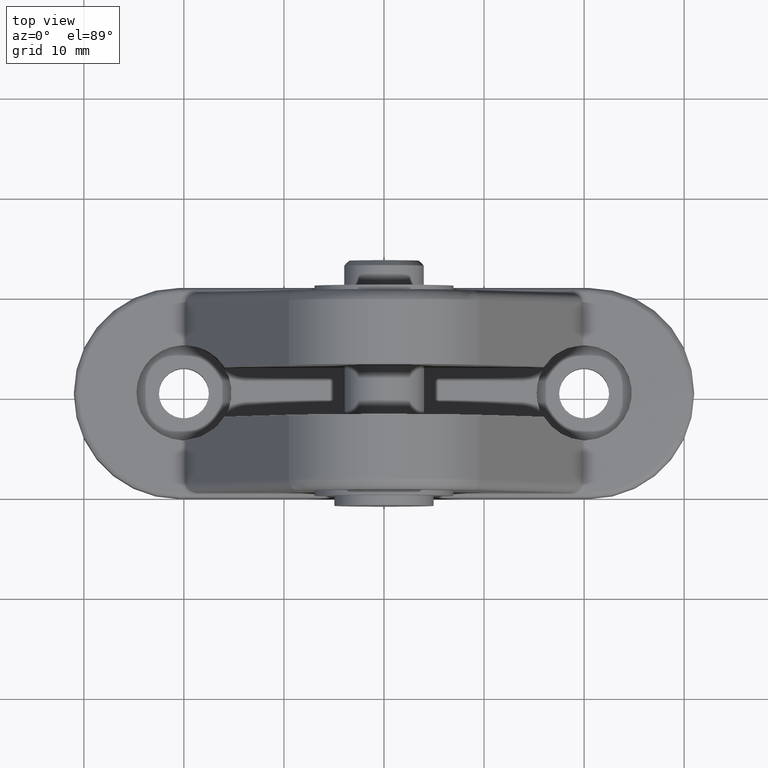
[diagram: clean part render]
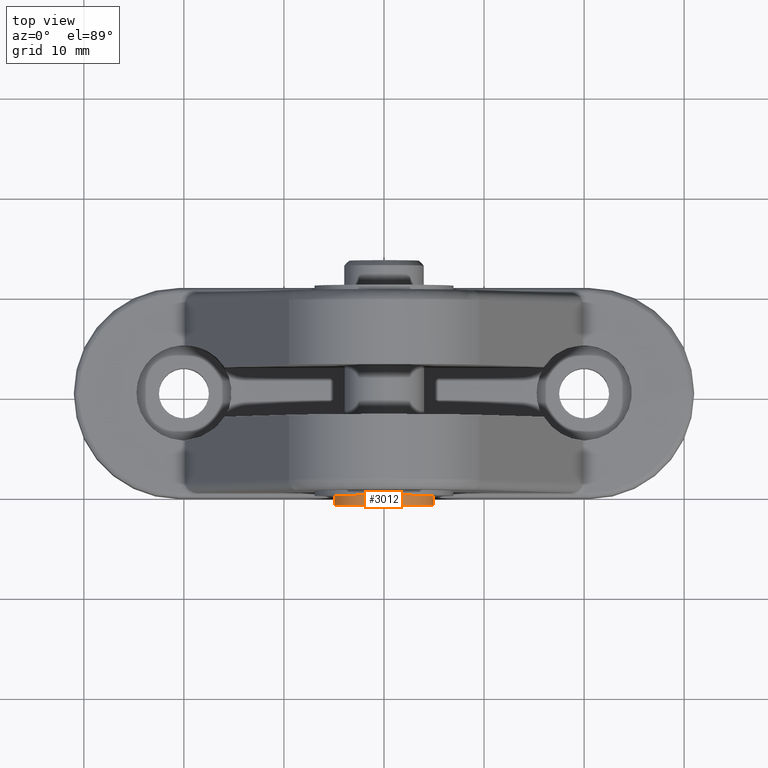
[diagram: same view with one face highlighted and labeled with its STEP entity id]
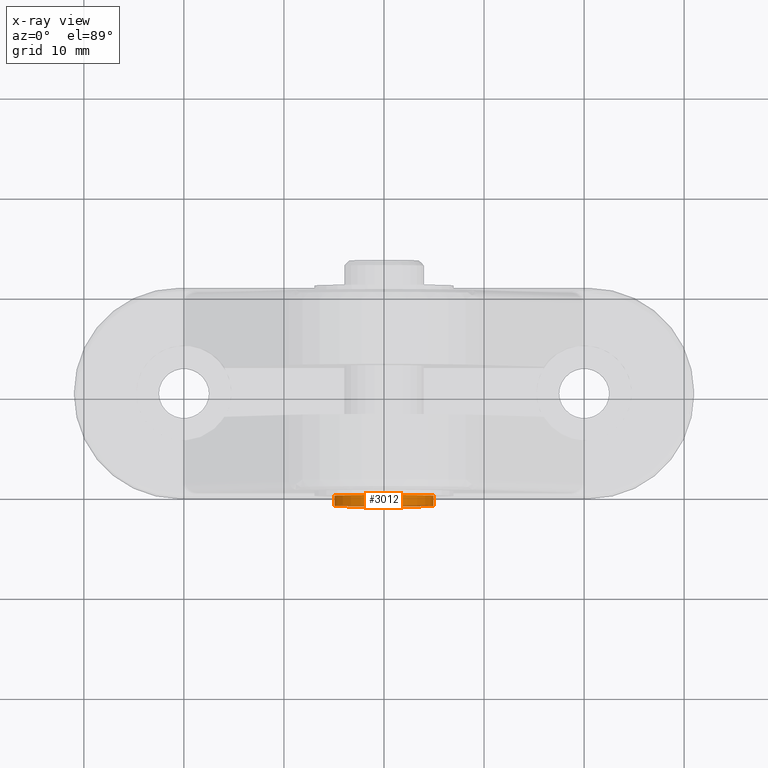
[diagram: x-ray of the same camera — body ghosted, the highlighted face saturated]
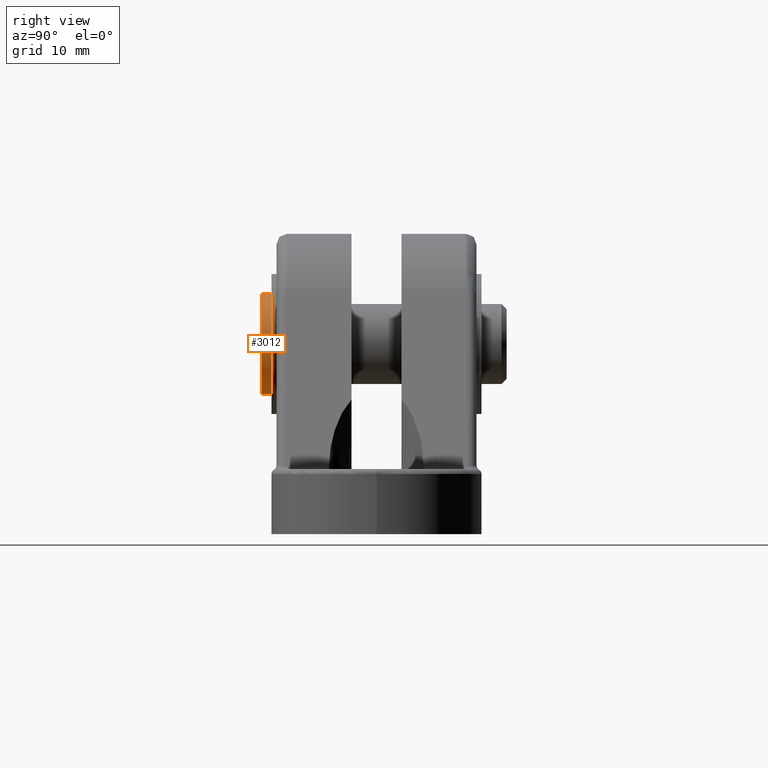
[diagram: same view with one face highlighted and labeled with its STEP entity id]
A machine part, top view. The second image highlights one B-rep face of the part: STEP entity #3012.
The next image is the same camera in x-ray: the body ghosted, the highlighted face saturated — about 0% of this face is hidden behind the body in this view.
A second angle (right view) of the same face is appended — the face is thin or edge-on in the first view.
In plain terms, the highlighted cylindrical surface (bore or boss wall) has radius 5 mm, axis along (0, -1, 0).
Its self-contained STEP definition (entity closure, byte-faithful):
#2962=CARTESIAN_POINT('',(7.105427E-015,0.0,19.0));
#2963=DIRECTION('',(0.0,-1.0,6.123234E-017));
#2964=DIRECTION('',(2.184439E-015,6.123234E-017,1.0));
#2965=AXIS2_PLACEMENT_3D('',#2962,#2963,#2964);
#2966=CYLINDRICAL_SURFACE('',#2965,4.999999999999998);
#2967=CARTESIAN_POINT('',(1.776357E-014,0.0,24.0));
#2968=VERTEX_POINT('',#2967);
#2969=CARTESIAN_POINT('',(-3.816767E-015,-3.061617E-016,14.000000000000002));
#2970=VERTEX_POINT('',#2969);
#2971=CARTESIAN_POINT('',(7.105427E-015,0.0,19.0));
#2972=DIRECTION('',(0.0,-1.0,6.123234E-017));
#2973=DIRECTION('',(2.184439E-015,6.123234E-017,1.0));
#2974=AXIS2_PLACEMENT_3D('',#2971,#2972,#2973);
#2975=CIRCLE('',#2974,4.999999999999998);
#2976=EDGE_CURVE('',#2968,#2970,#2975,.T.);
#2977=ORIENTED_EDGE('',*,*,#2976,.T.);
#2978=CARTESIAN_POINT('',(7.105427E-015,0.0,19.0));
#2979=DIRECTION('',(0.0,-1.0,6.123234E-017));
#2980=DIRECTION('',(2.184439E-015,6.123234E-017,1.0));
#2981=AXIS2_PLACEMENT_3D('',#2978,#2979,#2980);
#2982=CIRCLE('',#2981,4.999999999999998);
#2983=EDGE_CURVE('',#2970,#2968,#2982,.T.);
#2984=ORIENTED_EDGE('',*,*,#2983,.T.);
#2985=CARTESIAN_POINT('',(1.776357E-014,-1.0,24.0));
#2986=VERTEX_POINT('',#2985);
#2987=CARTESIAN_POINT('',(1.776357E-014,0.0,24.0));
#2988=DIRECTION('',(0.0,-1.0,0.0));
#2989=VECTOR('',#2988,1.0);
#2990=LINE('',#2987,#2989);
#2991=EDGE_CURVE('',#2968,#2986,#2990,.T.);
#2992=ORIENTED_EDGE('',*,*,#2991,.T.);
#2993=CARTESIAN_POINT('',(-3.816767E-015,-1.000000000000000,14.000000000000002));
#2994=VERTEX_POINT('',#2993);
#2995=CARTESIAN_POINT('',(7.105427E-015,-1.0,19.0));
#2996=DIRECTION('',(0.0,-1.0,6.123234E-017));
#2997=DIRECTION('',(2.184439E-015,6.123234E-017,1.0));
#2998=AXIS2_PLACEMENT_3D('',#2995,#2996,#2997);
#2999=CIRCLE('',#2998,4.999999999999998);
#3000=EDGE_CURVE('',#2994,#2986,#2999,.T.);
#3001=ORIENTED_EDGE('',*,*,#3000,.F.);
#3002=CARTESIAN_POINT('',(7.105427E-015,-1.0,19.0));
#3003=DIRECTION('',(0.0,-1.0,6.123234E-017));
#3004=DIRECTION('',(2.184439E-015,6.123234E-017,1.0));
#3005=AXIS2_PLACEMENT_3D('',#3002,#3003,#3004);
#3006=CIRCLE('',#3005,4.999999999999998);
#3007=EDGE_CURVE('',#2986,#2994,#3006,.T.);
#3008=ORIENTED_EDGE('',*,*,#3007,.F.);
#3009=ORIENTED_EDGE('',*,*,#2991,.F.);
#3010=EDGE_LOOP('',(#2977,#2984,#2992,#3001,#3008,#3009));
#3011=FACE_OUTER_BOUND('',#3010,.T.);
#3012=ADVANCED_FACE('',(#3011),#2966,.T.);